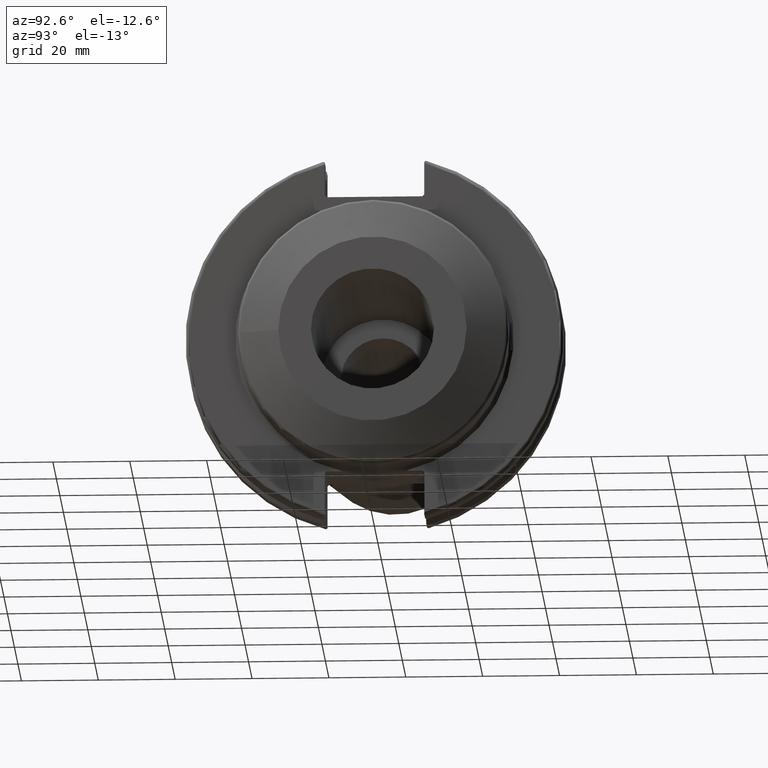
[diagram: clean part render]
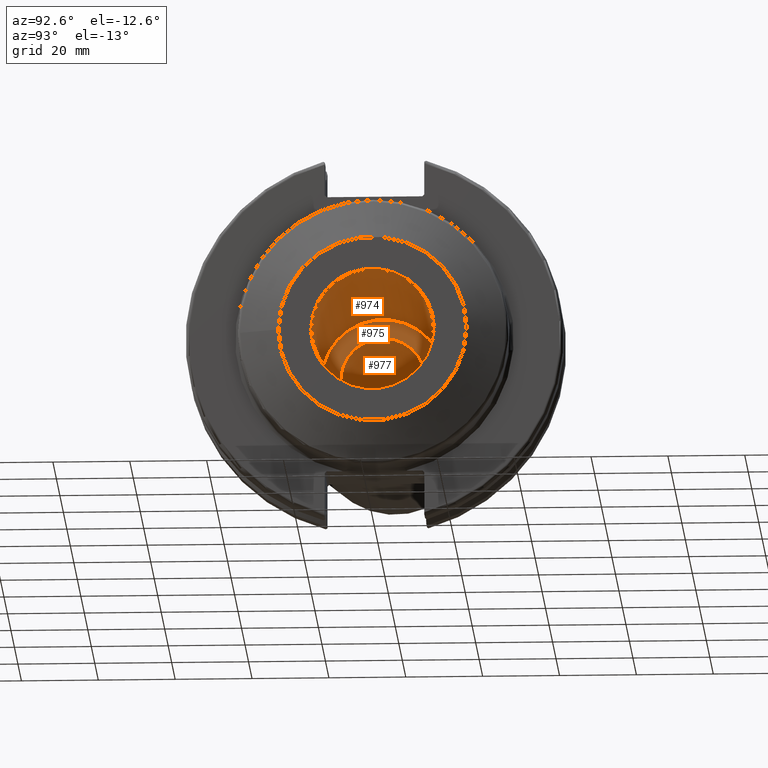
[diagram: same view with one multi-face feature highlighted, each face labeled with its STEP entity id]
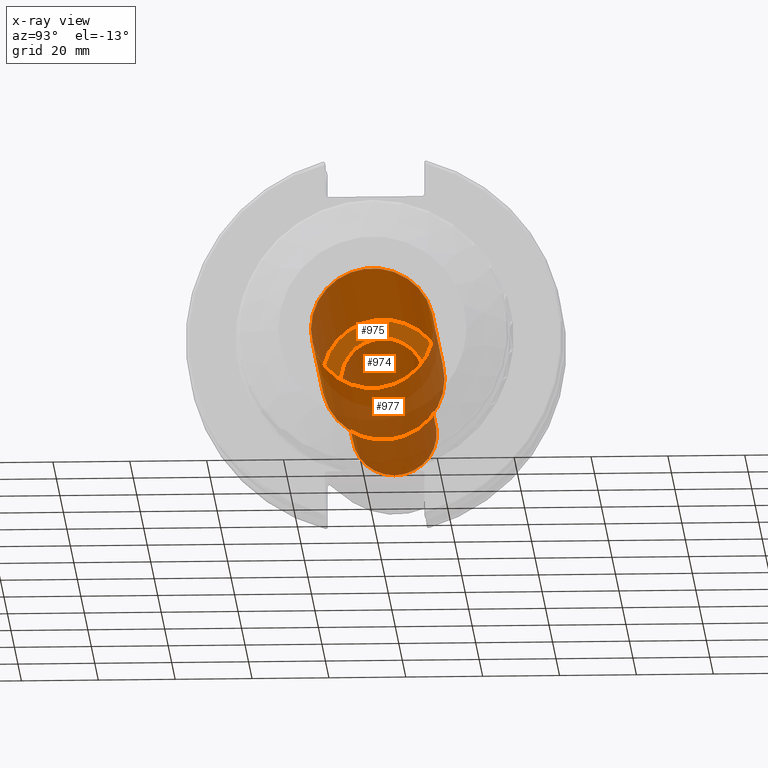
[diagram: x-ray of the same camera — body ghosted, the whole feature saturated]
A machine part, auxiliary view. The highlighted faces form ONE feature: a stepped (counterbored) hole: 2 coaxial cylindrical walls of radii 10.9855 -> 16 mm joined by 1 annular planar shoulder face(s). The faces share edges in the B-rep.
The next image is the same camera in x-ray: the body ghosted and the whole hole feature saturated, so the bore chain is visible through the body.
Their STEP definitions:
[1] entity #974 (Cylinder):
#94=LINE('',#1485,#162);
#162=VECTOR('',#1192,16.);
#229=CYLINDRICAL_SURFACE('',#1064,16.);
#244=FACE_OUTER_BOUND('',#301,.T.);
#301=EDGE_LOOP('',(#684,#685,#686,#687));
#370=CIRCLE('',#1065,16.);
#371=CIRCLE('',#1066,16.);
#419=VERTEX_POINT('',#1482);
#420=VERTEX_POINT('',#1484);
#523=EDGE_CURVE('',#419,#419,#370,.T.);
#524=EDGE_CURVE('',#419,#420,#94,.T.);
#525=EDGE_CURVE('',#420,#420,#371,.T.);
#684=ORIENTED_EDGE('',*,*,#523,.F.);
#685=ORIENTED_EDGE('',*,*,#524,.T.);
#686=ORIENTED_EDGE('',*,*,#525,.T.);
#687=ORIENTED_EDGE('',*,*,#524,.F.);
#974=ADVANCED_FACE('',(#244),#229,.F.);
#1064=AXIS2_PLACEMENT_3D('',#1481,#1188,#1189);
#1065=AXIS2_PLACEMENT_3D('',#1483,#1190,#1191);
#1066=AXIS2_PLACEMENT_3D('',#1486,#1193,#1194);
#1188=DIRECTION('center_axis',(-1.,0.,0.));
#1189=DIRECTION('ref_axis',(0.,1.,0.));
#1190=DIRECTION('center_axis',(-1.,0.,0.));
#1191=DIRECTION('ref_axis',(0.,1.,0.));
#1192=DIRECTION('',(-1.,0.,0.));
#1193=DIRECTION('center_axis',(-1.,0.,0.));
#1194=DIRECTION('ref_axis',(0.,0.,1.));
#1481=CARTESIAN_POINT('Origin',(0.4,0.,0.));
#1482=CARTESIAN_POINT('',(30.9,-16.,1.95943487863577E-15));
#1483=CARTESIAN_POINT('Origin',(30.9,0.,0.));
#1484=CARTESIAN_POINT('',(-30.1,-16.,1.95943487863577E-15));
#1485=CARTESIAN_POINT('',(0.4,-16.,1.95943487863577E-15));
#1486=CARTESIAN_POINT('Origin',(-30.1,0.,0.));
[2] entity #977 (Cylinder):
#95=LINE('',#1494,#163);
#163=VECTOR('',#1205,10.9855);
#230=CYLINDRICAL_SURFACE('',#1070,10.9855);
#247=FACE_OUTER_BOUND('',#306,.T.);
#306=EDGE_LOOP('',(#692,#693,#694,#695));
#372=CIRCLE('',#1068,10.9855);
#373=CIRCLE('',#1071,10.9855);
#421=VERTEX_POINT('',#1488);
#422=VERTEX_POINT('',#1492);
#526=EDGE_CURVE('',#421,#421,#372,.T.);
#527=EDGE_CURVE('',#422,#422,#373,.T.);
#528=EDGE_CURVE('',#422,#421,#95,.T.);
#692=ORIENTED_EDGE('',*,*,#527,.F.);
#693=ORIENTED_EDGE('',*,*,#528,.T.);
#694=ORIENTED_EDGE('',*,*,#526,.T.);
#695=ORIENTED_EDGE('',*,*,#528,.F.);
#977=ADVANCED_FACE('',(#247),#230,.F.);
#1068=AXIS2_PLACEMENT_3D('',#1489,#1197,#1198);
#1070=AXIS2_PLACEMENT_3D('',#1491,#1201,#1202);
#1071=AXIS2_PLACEMENT_3D('',#1493,#1203,#1204);
#1197=DIRECTION('center_axis',(1.,0.,0.));
#1198=DIRECTION('ref_axis',(0.,0.,1.));
#1201=DIRECTION('center_axis',(-1.,0.,0.));
#1202=DIRECTION('ref_axis',(0.,0.,1.));
#1203=DIRECTION('center_axis',(1.,0.,0.));
#1204=DIRECTION('ref_axis',(0.,0.,1.));
#1205=DIRECTION('',(1.,0.,0.));
#1488=CARTESIAN_POINT('',(-30.1,1.34533574120333E-15,-10.9855));
#1489=CARTESIAN_POINT('Origin',(-30.1,0.,0.));
#1491=CARTESIAN_POINT('Origin',(-61.6,0.,0.));
#1492=CARTESIAN_POINT('',(-95.25,1.34533574120333E-15,-10.9855));
#1493=CARTESIAN_POINT('Origin',(-95.25,0.,0.));
#1494=CARTESIAN_POINT('',(-61.6,-1.34533574120333E-15,-10.9855));
[3] entity #975 (Plane):
#31=FACE_BOUND('',#303,.T.);
#37=PLANE('',#1067);
#245=FACE_OUTER_BOUND('',#302,.T.);
#302=EDGE_LOOP('',(#688));
#303=EDGE_LOOP('',(#689));
#371=CIRCLE('',#1066,16.);
#372=CIRCLE('',#1068,10.9855);
#420=VERTEX_POINT('',#1484);
#421=VERTEX_POINT('',#1488);
#525=EDGE_CURVE('',#420,#420,#371,.T.);
#526=EDGE_CURVE('',#421,#421,#372,.T.);
#688=ORIENTED_EDGE('',*,*,#525,.F.);
#689=ORIENTED_EDGE('',*,*,#526,.F.);
#975=ADVANCED_FACE('',(#245,#31),#37,.F.);
#1066=AXIS2_PLACEMENT_3D('',#1486,#1193,#1194);
#1067=AXIS2_PLACEMENT_3D('',#1487,#1195,#1196);
#1068=AXIS2_PLACEMENT_3D('',#1489,#1197,#1198);
#1193=DIRECTION('center_axis',(-1.,0.,0.));
#1194=DIRECTION('ref_axis',(0.,0.,1.));
#1195=DIRECTION('center_axis',(-1.,0.,0.));
#1196=DIRECTION('ref_axis',(0.,0.,1.));
#1197=DIRECTION('center_axis',(1.,0.,0.));
#1198=DIRECTION('ref_axis',(0.,0.,1.));
#1484=CARTESIAN_POINT('',(-30.1,-16.,1.95943487863577E-15));
#1486=CARTESIAN_POINT('Origin',(-30.1,0.,0.));
#1487=CARTESIAN_POINT('Origin',(-30.1,-2.22044604925031E-15,0.));
#1488=CARTESIAN_POINT('',(-30.1,1.34533574120333E-15,-10.9855));
#1489=CARTESIAN_POINT('Origin',(-30.1,0.,0.));